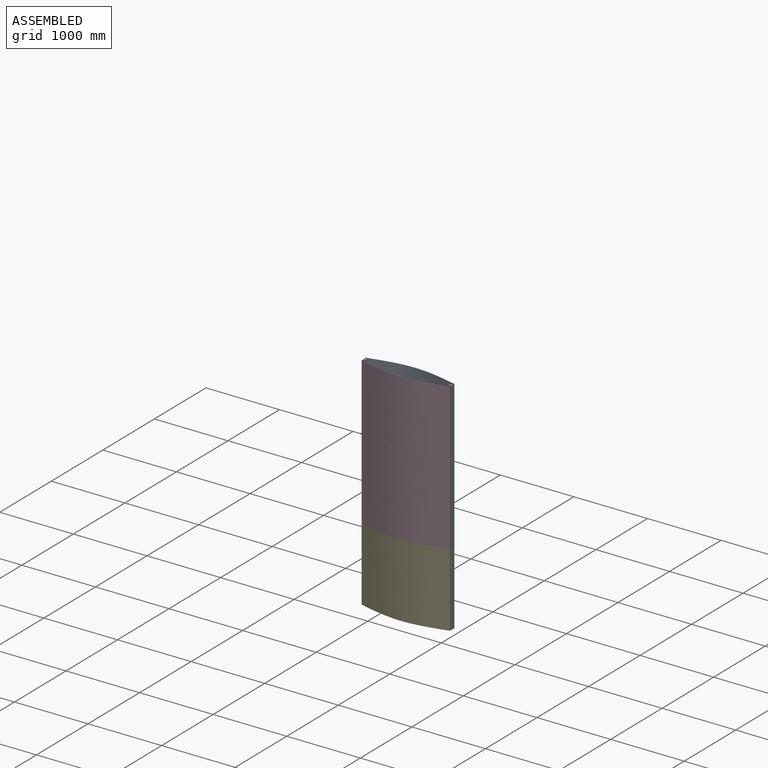
[diagram: assembled view]
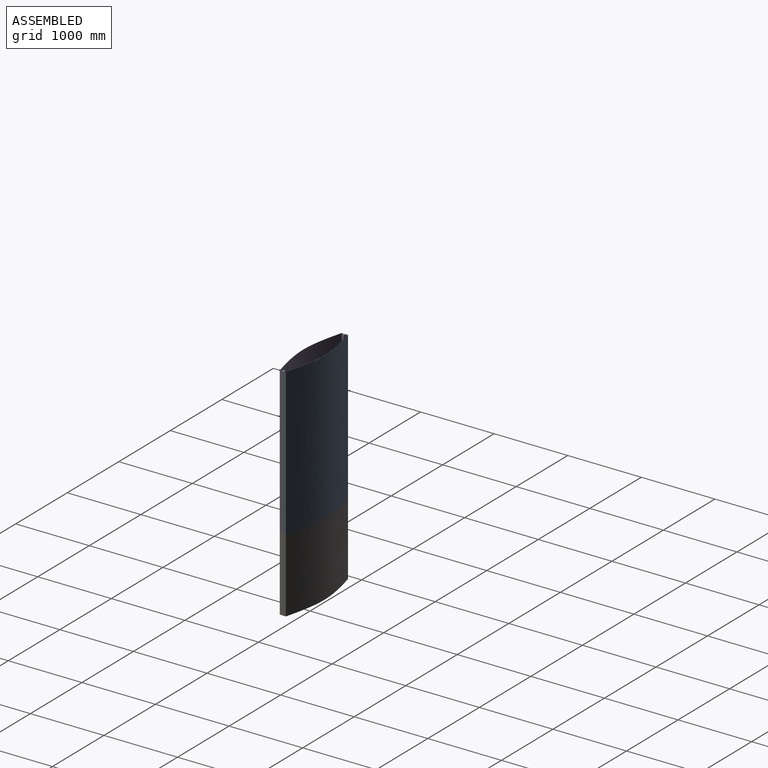
[diagram: assembled view, second angle]
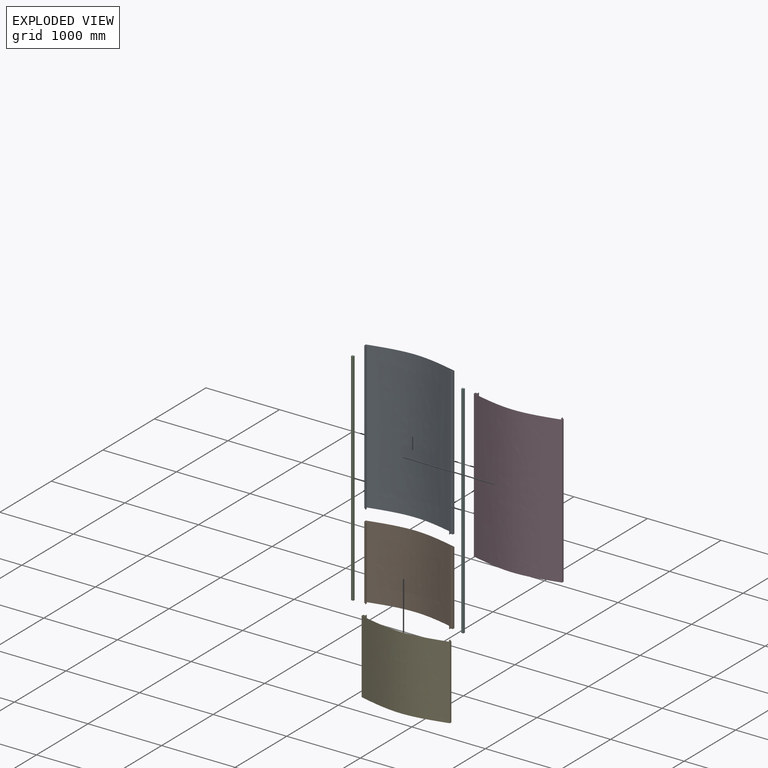
[diagram: exploded view]
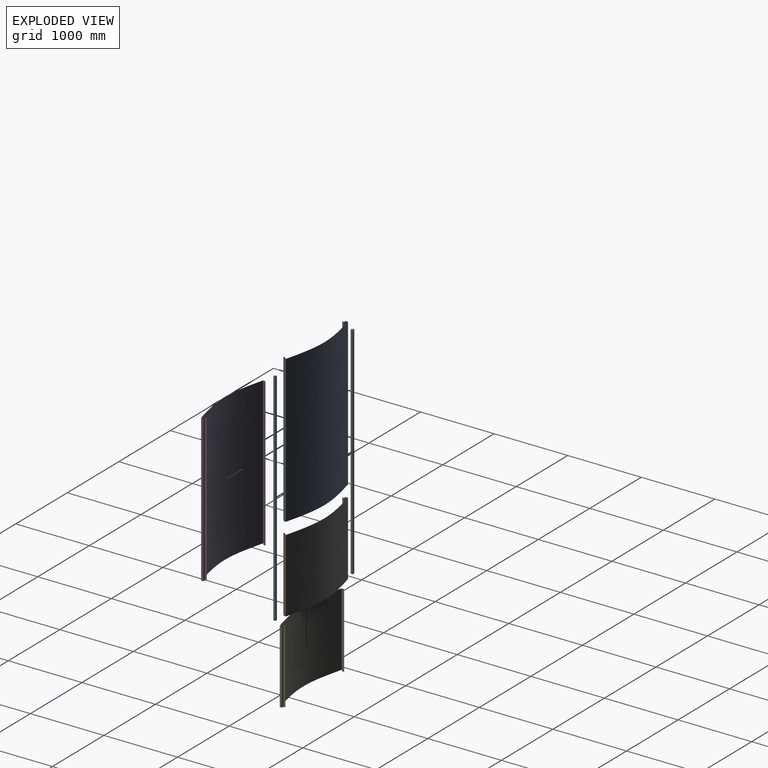
[diagram: exploded view, second angle]
ASSEMBLY  parts=6 mates=5
PART A: 18 faces, bbox 1204x160.2x2000 mm
  f0: plane 2000x30mm, normal (-1,0,0), area 60000mm2, adj f1,f15,f16,f17
  f1: extruded ~2000x1204.01mm, area 2447124mm2, adj f0,f2,f16,f17
  f2: plane 2000x30mm, normal (1,0,0), area 60000mm2, adj f1,f3,f16,f17
  f3: plane 2000x30mm, normal (0,1,0), area 60000mm2, adj f2,f4,f16,f17
  f4: plane 2000x25mm, normal (1,0,0), area 50000mm2, adj f3,f5,f16,f17
  f5: plane 2000x2mm, normal (0,1,0), area 4000mm2, adj f4,f6,f16,f17
  f6: plane 2000x27mm, normal (-1,0,0), area 54000mm2, adj f5,f7,f16,f17
  f7: plane 2000x30mm, normal (0,-1,0), area 60000mm2, adj f6,f8,f16,f17
  f8: plane 2000x26.81mm, normal (-1,0,0), area 53624mm2, adj f7,f9,f16,f17
  f9: extruded ~2000x1200.01mm, area 2438779.9mm2, adj f8,f10,f16,f17
  f10: plane 2000x26.81mm, normal (1,0,0), area 53624.7mm2, adj f9,f11,f16,f17
  f11: plane 2000x30mm, normal (0,-1,0), area 60000mm2, adj f10,f12,f16,f17
  f12: plane 2000x27mm, normal (1,0,0), area 54000mm2, adj f11,f13,f16,f17
  f13: plane 2000x2mm, normal (0,1,0), area 4000mm2, adj f12,f14,f16,f17
  f14: plane 2000x25mm, normal (-1,0,0), area 50000mm2, adj f13,f15,f16,f17
  f15: plane 2000x30mm, normal (0,1,0), area 60000mm2, adj f0,f14,f16,f17
  f16: plane 1204.01x160.17mm, normal (0,0,1), area 2382.5mm2, adj f0,f1,f2,f3,f4,f5,f6,f7
  f17: plane 1204.01x160.17mm, normal (0,0,-1), area 2382.5mm2, adj f0,f1,f2,f3,f4,f5,f6,f7
PART B: 18 faces, bbox 1204x160.2x1000 mm
  f0: plane 1000x30mm, normal (-1,0,0), area 30000mm2, adj f1,f15,f16,f17
  f1: extruded ~1204.01x1000mm, area 1223562mm2, adj f0,f2,f16,f17
  f2: plane 1000x30mm, normal (1,0,0), area 30000mm2, adj f1,f3,f16,f17
  f3: plane 1000x30mm, normal (0,1,0), area 30000mm2, adj f2,f4,f16,f17
  f4: plane 1000x25mm, normal (1,0,0), area 25000mm2, adj f3,f5,f16,f17
  f5: plane 1000x2mm, normal (0,1,0), area 2000mm2, adj f4,f6,f16,f17
  f6: plane 1000x27mm, normal (-1,0,0), area 27000mm2, adj f5,f7,f16,f17
  f7: plane 1000x30mm, normal (0,-1,0), area 30000mm2, adj f6,f8,f16,f17
  f8: plane 1000x26.81mm, normal (-1,0,0), area 26812mm2, adj f7,f9,f16,f17
  f9: extruded ~1200.01x1000mm, area 1219390mm2, adj f8,f10,f16,f17
  f10: plane 1000x26.81mm, normal (1,0,0), area 26812.4mm2, adj f9,f11,f16,f17
  f11: plane 1000x30mm, normal (0,-1,0), area 30000mm2, adj f10,f12,f16,f17
  f12: plane 1000x27mm, normal (1,0,0), area 27000mm2, adj f11,f13,f16,f17
  f13: plane 1000x2mm, normal (0,1,0), area 2000mm2, adj f12,f14,f16,f17
  f14: plane 1000x25mm, normal (-1,0,0), area 25000mm2, adj f13,f15,f16,f17
  f15: plane 1000x30mm, normal (0,1,0), area 30000mm2, adj f0,f14,f16,f17
  f16: plane 1204.01x160.17mm, normal (0,0,1), area 2382.5mm2, adj f0,f1,f2,f3,f4,f5,f6,f7
  f17: plane 1204.01x160.17mm, normal (0,0,-1), area 2382.5mm2, adj f0,f1,f2,f3,f4,f5,f6,f7
PART C: 6 faces, bbox 27x30x3000 mm
  f0: plane 3000x27mm, normal (0,1,0), area 81000mm2, adj f1,f3,f4,f5
  f1: plane 3000x30mm, normal (-1,0,0), area 90000mm2, adj f0,f2,f4,f5
  f2: plane 3000x27mm, normal (0,-1,0), area 81000mm2, adj f1,f3,f4,f5
  f3: plane 3000x30mm, normal (1,0,0), area 90000mm2, adj f0,f2,f4,f5
  f4: plane 30x27mm, normal (0,0,1), area 810mm2, adj f0,f1,f2,f3
  f5: plane 30x27mm, normal (0,0,-1), area 810mm2, adj f0,f1,f2,f3
PART D: 18 faces, bbox 1200x160.2x2000 mm
  f0: plane 2000x30mm, normal (-1,0,0), area 60000mm2, adj f1,f15,f16,f17
  f1: extruded ~2000x1200.01mm, area 2439215.9mm2, adj f0,f2,f16,f17
  f2: plane 2000x30mm, normal (1,0,0), area 60000mm2, adj f1,f3,f16,f17
  f3: plane 2000x30mm, normal (0,1,0), area 60000mm2, adj f2,f4,f16,f17
  f4: plane 2000x25mm, normal (1,0,0), area 50000mm2, adj f3,f5,f16,f17
  f5: plane 2000x2mm, normal (0,1,0), area 4000mm2, adj f4,f6,f16,f17
  f6: plane 2000x27mm, normal (-1,0,0), area 54000mm2, adj f5,f7,f16,f17
  f7: plane 2000x30mm, normal (0,-1,0), area 60000mm2, adj f6,f8,f16,f17
  f8: plane 2000x26.81mm, normal (-1,0,0), area 53624mm2, adj f7,f9,f16,f17
  f9: extruded ~2000x1196.01mm, area 2430869.8mm2, adj f8,f10,f16,f17
  f10: plane 2000x26.81mm, normal (1,0,0), area 53624.7mm2, adj f9,f11,f16,f17
  f11: plane 2000x30mm, normal (0,-1,0), area 60000mm2, adj f10,f12,f16,f17
  f12: plane 2000x27mm, normal (1,0,0), area 54000mm2, adj f11,f13,f16,f17
  f13: plane 2000x2mm, normal (0,1,0), area 4000mm2, adj f12,f14,f16,f17
  f14: plane 2000x25mm, normal (-1,0,0), area 50000mm2, adj f13,f15,f16,f17
  f15: plane 2000x30mm, normal (0,1,0), area 60000mm2, adj f0,f14,f16,f17
  f16: plane 1200.01x160.16mm, normal (0,0,1), area 2377.3mm2, adj f0,f1,f2,f3,f4,f5,f6,f7
  f17: plane 1200.01x160.16mm, normal (0,0,-1), area 2377.3mm2, adj f0,f1,f2,f3,f4,f5,f6,f7
PART E: 18 faces, bbox 1200x160.2x1000 mm
  f0: plane 1000x30mm, normal (-1,0,0), area 30000mm2, adj f1,f15,f16,f17
  f1: extruded ~1200.01x1000mm, area 1219607.9mm2, adj f0,f2,f16,f17
  f2: plane 1000x30mm, normal (1,0,0), area 30000mm2, adj f1,f3,f16,f17
  f3: plane 1000x30mm, normal (0,1,0), area 30000mm2, adj f2,f4,f16,f17
  f4: plane 1000x25mm, normal (1,0,0), area 25000mm2, adj f3,f5,f16,f17
  f5: plane 1000x2mm, normal (0,1,0), area 2000mm2, adj f4,f6,f16,f17
  f6: plane 1000x27mm, normal (-1,0,0), area 27000mm2, adj f5,f7,f16,f17
  f7: plane 1000x30mm, normal (0,-1,0), area 30000mm2, adj f6,f8,f16,f17
  f8: plane 1000x26.81mm, normal (-1,0,0), area 26812mm2, adj f7,f9,f16,f17
  f9: extruded ~1196.01x1000mm, area 1215434.9mm2, adj f8,f10,f16,f17
  f10: plane 1000x26.81mm, normal (1,0,0), area 26812.4mm2, adj f9,f11,f16,f17
  f11: plane 1000x30mm, normal (0,-1,0), area 30000mm2, adj f10,f12,f16,f17
  f12: plane 1000x27mm, normal (1,0,0), area 27000mm2, adj f11,f13,f16,f17
  f13: plane 1000x2mm, normal (0,1,0), area 2000mm2, adj f12,f14,f16,f17
  f14: plane 1000x25mm, normal (-1,0,0), area 25000mm2, adj f13,f15,f16,f17
  f15: plane 1000x30mm, normal (0,1,0), area 30000mm2, adj f0,f14,f16,f17
  f16: plane 1200.01x160.16mm, normal (0,0,1), area 2377.3mm2, adj f0,f1,f2,f3,f4,f5,f6,f7
  f17: plane 1200.01x160.16mm, normal (0,0,-1), area 2377.3mm2, adj f0,f1,f2,f3,f4,f5,f6,f7
PART F: same geometry as C
PLACE A rot(axis=(0,0,-1),180deg) t=(-645.96,-1680.27,2242.13)mm
PLACE B rot(axis=(0,0,-1),180deg) t=(-645.96,-1680.27,1242.13)mm
PLACE C rot(axis=(0,0,-1),90deg) t=(-1819.97,-1708.27,1242.13)mm
PLACE D t=(-1847.97,-1764.27,2242.13)mm
PLACE E t=(-1847.97,-1764.27,1242.13)mm
PLACE F rot(axis=(0,0,-1),90deg) t=(-645.96,-1709.27,1242.13)mm
MATE fastened A.f17 <-> B.f16  axis (0,0,-1) through (-1817.97,-1734.27,2242.13)mm
MATE fastened C.f0 <-> B.f4  axis (1,0,0) through (-1819.97,-1721.77,1242.13)mm
MATE fastened D.f17 <-> E.f16  axis (0,0,-1) through (-679.96,-1710.27,2242.13)mm
MATE fastened A.f6 <-> D.f14  axis (1,0,0) through (-1817.97,-1734.27,4242.13)mm
MATE fastened F.f2 <-> B.f14  axis (-1,0,0) through (-675.96,-1722.77,1242.13)mm
